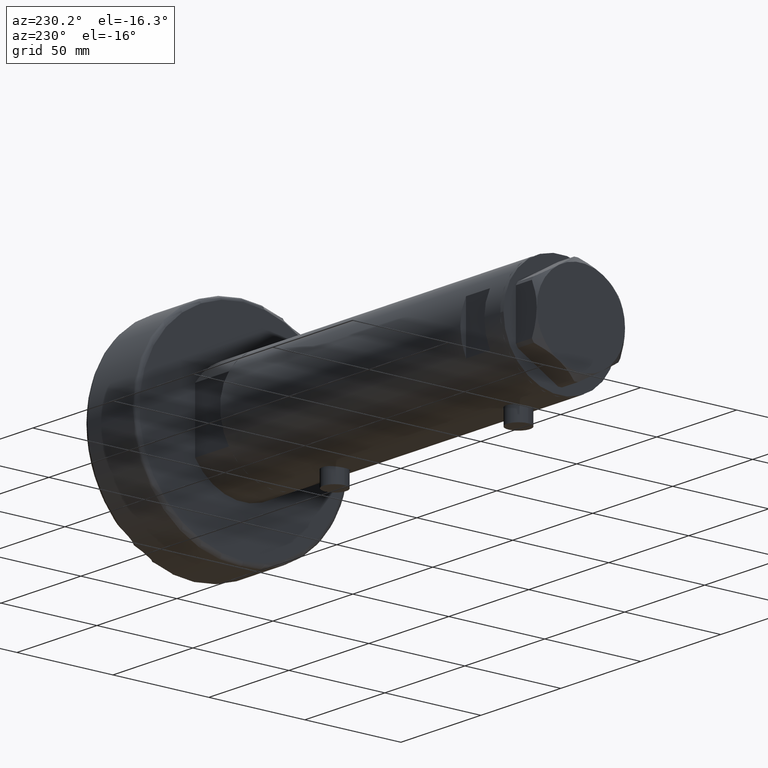
[diagram: clean part render]
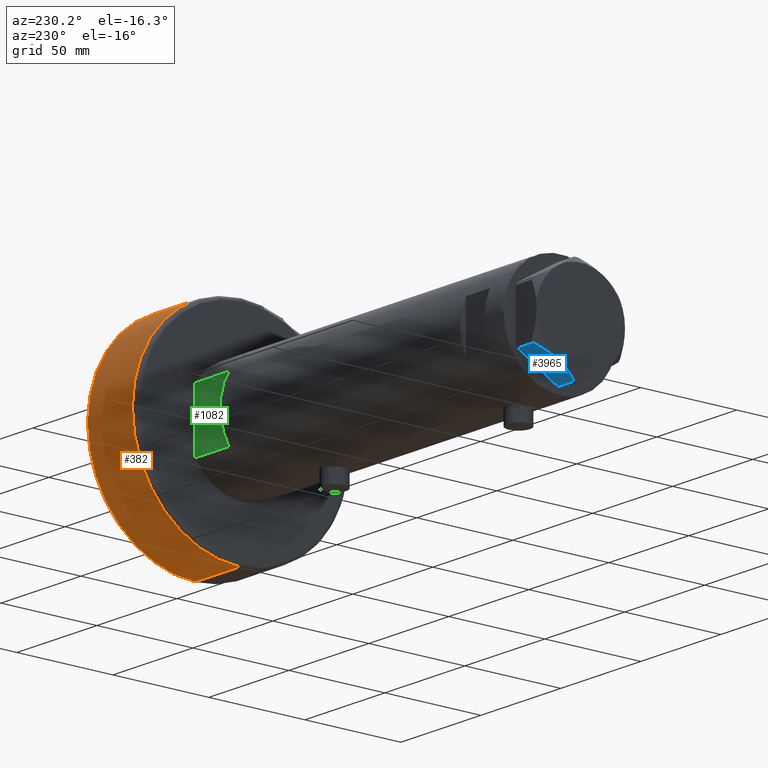
[diagram: same view with three faces highlighted in distinct colors, each labeled with its STEP entity id]
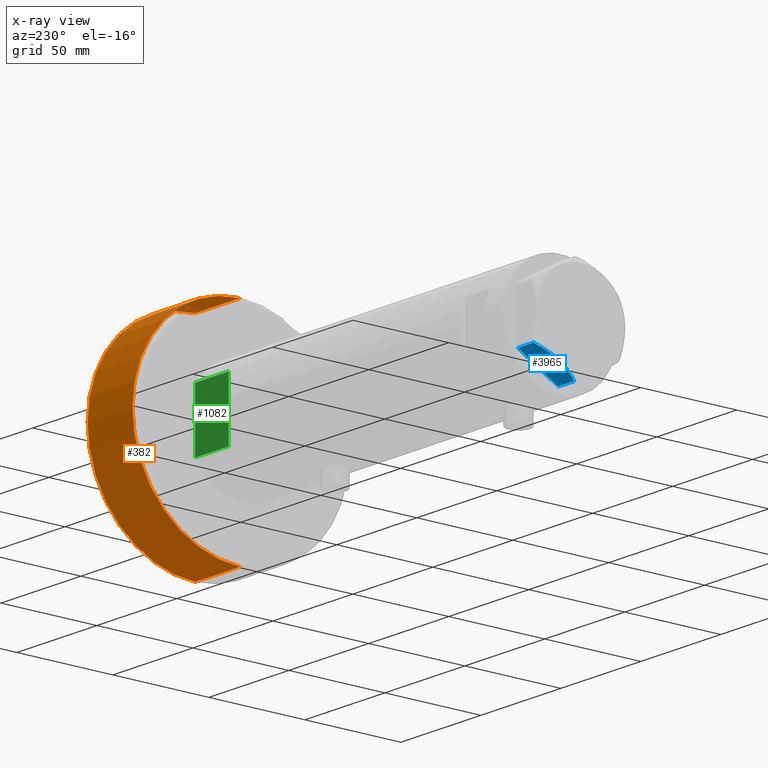
[diagram: x-ray of the same camera — body ghosted, the three highlighted faces saturated]
A machine part, auxiliary view with three faces highlighted in distinct colors.
The next image is the same camera in x-ray (body ghosted, the three faces saturated) — at least one of them is partly hidden behind the body in this view.
Their STEP definitions:

[orange] entity #382 — the highlighted cylindrical surface (partial cylindrical patch) has radius 56 mm, axis along (-1, -0, 0).
#72 = ORIENTED_EDGE ( 'NONE', *, *, #1482, .T. ) ;
#101 = DIRECTION ( 'NONE',  ( 0.000000000000000000, 0.000000000000000000, 1.000000000000000000 ) ) ;
#310 = CARTESIAN_POINT ( 'NONE',  ( -56.00000000000000000, 0.000000000000000000, 2.000000000000001776 ) ) ;
#382 = ADVANCED_FACE ( 'NONE', ( #2652 ), #1179, .T. ) ;
#499 = DIRECTION ( 'NONE',  ( -0.000000000000000000, -0.000000000000000000, -1.000000000000000000 ) ) ;
#584 = CARTESIAN_POINT ( 'NONE',  ( 56.00000000000000000, 6.858022075225178552E-15, 2.000000000000001776 ) ) ;
#783 = DIRECTION ( 'NONE',  ( -0.000000000000000000, -0.000000000000000000, -1.000000000000000000 ) ) ;
#821 = CARTESIAN_POINT ( 'NONE',  ( -56.00000000000000000, 0.000000000000000000, 32.00000000000000000 ) ) ;
#835 = CARTESIAN_POINT ( 'NONE',  ( 0.000000000000000000, 0.000000000000000000, 32.00000000000000000 ) ) ;
#1044 = EDGE_CURVE ( 'NONE', #4204, #4089, #4355, .T. ) ;
#1132 = EDGE_LOOP ( 'NONE', ( #72, #1228, #3410, #4830 ) ) ;
#1137 = CARTESIAN_POINT ( 'NONE',  ( 56.00000000000000000, 6.858022075225178552E-15, 32.00000000000000000 ) ) ;
#1179 = CYLINDRICAL_SURFACE ( 'NONE', #3230, 56.00000000000000000 ) ;
#1193 = LINE ( 'NONE', #821, #1849 ) ;
#1222 = CIRCLE ( 'NONE', #2865, 56.00000000000000000 ) ;
#1228 = ORIENTED_EDGE ( 'NONE', *, *, #2717, .T. ) ;
#1453 = VERTEX_POINT ( 'NONE', #3052 ) ;
#1482 = EDGE_CURVE ( 'NONE', #2770, #1453, #1222, .T. ) ;
#1561 = DIRECTION ( 'NONE',  ( -1.000000000000000000, 0.000000000000000000, 0.000000000000000000 ) ) ;
#1576 = DIRECTION ( 'NONE',  ( 1.000000000000000000, 0.000000000000000000, 0.000000000000000000 ) ) ;
#1607 = CARTESIAN_POINT ( 'NONE',  ( 0.000000000000000000, 0.000000000000000000, 2.000000000000001776 ) ) ;
#1849 = VECTOR ( 'NONE', #499, 1000.000000000000000 ) ;
#1865 = DIRECTION ( 'NONE',  ( -0.000000000000000000, -0.000000000000000000, -1.000000000000000000 ) ) ;
#2167 = AXIS2_PLACEMENT_3D ( 'NONE', #1607, #101, #2439 ) ;
#2439 = DIRECTION ( 'NONE',  ( 1.000000000000000000, 0.000000000000000000, 0.000000000000000000 ) ) ;
#2652 = FACE_OUTER_BOUND ( 'NONE', #1132, .T. ) ;
#2717 = EDGE_CURVE ( 'NONE', #1453, #4204, #3718, .T. ) ;
#2770 = VERTEX_POINT ( 'NONE', #3090 ) ;
#2805 = EDGE_CURVE ( 'NONE', #2770, #4089, #1193, .T. ) ;
#2865 = AXIS2_PLACEMENT_3D ( 'NONE', #3806, #4605, #1576 ) ;
#3052 = CARTESIAN_POINT ( 'NONE',  ( 56.00000000000000000, 6.858022075225178552E-15, 30.00000000000000000 ) ) ;
#3090 = CARTESIAN_POINT ( 'NONE',  ( -56.00000000000000000, 0.000000000000000000, 30.00000000000000000 ) ) ;
#3230 = AXIS2_PLACEMENT_3D ( 'NONE', #835, #783, #1561 ) ;
#3410 = ORIENTED_EDGE ( 'NONE', *, *, #1044, .T. ) ;
#3718 = LINE ( 'NONE', #1137, #4498 ) ;
#3806 = CARTESIAN_POINT ( 'NONE',  ( 0.000000000000000000, 0.000000000000000000, 30.00000000000000000 ) ) ;
#4089 = VERTEX_POINT ( 'NONE', #310 ) ;
#4204 = VERTEX_POINT ( 'NONE', #584 ) ;
#4355 = CIRCLE ( 'NONE', #2167, 56.00000000000000000 ) ;
#4498 = VECTOR ( 'NONE', #1865, 1000.000000000000000 ) ;
#4605 = DIRECTION ( 'NONE',  ( -0.000000000000000000, -0.000000000000000000, -1.000000000000000000 ) ) ;
#4830 = ORIENTED_EDGE ( 'NONE', *, *, #2805, .F. ) ;

[blue] entity #3965 — the highlighted planar face has unit normal (0, -0.5, 0.866).
#149 = PLANE ( 'NONE',  #4369 ) ;
#159 = EDGE_LOOP ( 'NONE', ( #3680, #796, #1557, #3792, #2582 ) ) ;
#230 = FACE_OUTER_BOUND ( 'NONE', #159, .T. ) ;
#534 = CARTESIAN_POINT ( 'NONE',  ( 18.67981377008996802, 15.77331687414936567, 11.62937486882604965 ) ) ;
#594 = CARTESIAN_POINT ( 'NONE',  ( 22.03005154776124996, 13.83905619136162635, 13.00000000000000000 ) ) ;
#764 = CARTESIAN_POINT ( 'NONE',  ( 3.925137811030053214, 24.29193301091819279, 11.39727285399137813 ) ) ;
#792 = B_SPLINE_CURVE_WITH_KNOTS ( 'NONE', 3,
 ( #3121, #3889, #534, #4183, #871, #4205, #1662, #2351, #826, #2370 ),
 .UNSPECIFIED., .F., .F.,
 ( 4, 2, 2, 2, 4 ),
 ( 0.001228959670438484414, 0.007497079744270713011, 0.01063113978118682308, 0.01219816979964488159, 0.01376519981810293836 ),
 .UNSPECIFIED. ) ;
#796 = ORIENTED_EDGE ( 'NONE', *, *, #1352, .T. ) ;
#826 = CARTESIAN_POINT ( 'NONE',  ( 11.95865151389051384, 19.65378171203322921, 13.00000000000000355 ) ) ;
#841 = CARTESIAN_POINT ( 'NONE',  ( 1.799196345396830266, 25.51934588838290452, 10.43131750950938930 ) ) ;
#871 = CARTESIAN_POINT ( 'NONE',  ( 15.16323225988329604, 17.80361615569442790, 12.63731396715686728 ) ) ;
#1267 = LINE ( 'NONE', #2030, #4048 ) ;
#1352 = EDGE_CURVE ( 'NONE', #3556, #3030, #1979, .T. ) ;
#1489 = CARTESIAN_POINT ( 'NONE',  ( 0.9699484522385838359, 25.99811238272274139, 9.983800287807635954 ) ) ;
#1520 = CARTESIAN_POINT ( 'NONE',  ( 11.49999999999990408, 19.91858428704219364, 13.00000000000000000 ) ) ;
#1557 = ORIENTED_EDGE ( 'NONE', *, *, #2919, .T. ) ;
#1577 = EDGE_CURVE ( 'NONE', #3748, #2677, #1754, .T. ) ;
#1580 = CARTESIAN_POINT ( 'NONE',  ( 7.884645426989624895, 22.00591022298558741, 12.70765172847692526 ) ) ;
#1649 = CARTESIAN_POINT ( 'NONE',  ( 22.99999999999981171, 13.27905619136164184, 13.00000000000000000 ) ) ;
#1662 = CARTESIAN_POINT ( 'NONE',  ( 13.34348161667004362, 18.85424967941157703, 12.90784227772834392 ) ) ;
#1754 = LINE ( 'NONE', #4260, #2095 ) ;
#1773 = CARTESIAN_POINT ( 'NONE',  ( 22.03005154776124996, 13.83905619136162635, 0.000000000000000000 ) ) ;
#1951 = CARTESIAN_POINT ( 'NONE',  ( 9.678244919010090541, 20.97037507344921892, 13.00000000000000888 ) ) ;
#1979 = LINE ( 'NONE', #594, #2856 ) ;
#2030 = CARTESIAN_POINT ( 'NONE',  ( 22.99999999999981171, 13.27905619136164184, 0.000000000000000000 ) ) ;
#2095 = VECTOR ( 'NONE', #2771, 1000.000000000000000 ) ;
#2351 = CARTESIAN_POINT ( 'NONE',  ( 12.41906678023027055, 19.38796083407295612, 12.98168640760940562 ) ) ;
#2370 = CARTESIAN_POINT ( 'NONE',  ( 11.49999999999990408, 19.91858428704219364, 13.00000000000000000 ) ) ;
#2444 = EDGE_CURVE ( 'NONE', #2703, #2677, #4430, .T. ) ;
#2524 = EDGE_CURVE ( 'NONE', #3556, #2703, #792, .T. ) ;
#2582 = ORIENTED_EDGE ( 'NONE', *, *, #2444, .F. ) ;
#2633 = CARTESIAN_POINT ( 'NONE',  ( 5.229981517798068857, 23.53858114556529912, 11.89212886775839451 ) ) ;
#2677 = VERTEX_POINT ( 'NONE', #2864 ) ;
#2703 = VERTEX_POINT ( 'NONE', #1520 ) ;
#2704 = CARTESIAN_POINT ( 'NONE',  ( 4.357207709416042185, 24.04247733877631887, 11.57055225522968378 ) ) ;
#2771 = DIRECTION ( 'NONE',  ( 0.000000000000000000, 0.000000000000000000, 1.000000000000000000 ) ) ;
#2856 = VECTOR ( 'NONE', #4762, 1000.000000000000000 ) ;
#2864 = CARTESIAN_POINT ( 'NONE',  ( 0.9699484522385838359, 25.99811238272274139, 9.983800287807635954 ) ) ;
#2919 = EDGE_CURVE ( 'NONE', #3030, #3748, #1267, .T. ) ;
#3030 = VERTEX_POINT ( 'NONE', #1773 ) ;
#3121 = CARTESIAN_POINT ( 'NONE',  ( 22.03005154776139207, 13.83905619136154463, 9.983800287807527596 ) ) ;
#3479 = CARTESIAN_POINT ( 'NONE',  ( 11.49999999999990408, 19.91858428704219364, 13.00000000000000000 ) ) ;
#3517 = DIRECTION ( 'NONE',  ( -0.8660254037844415942, 0.4999999999999949485, 0.000000000000000000 ) ) ;
#3556 = VERTEX_POINT ( 'NONE', #4380 ) ;
#3680 = ORIENTED_EDGE ( 'NONE', *, *, #2524, .F. ) ;
#3748 = VERTEX_POINT ( 'NONE', #4752 ) ;
#3792 = ORIENTED_EDGE ( 'NONE', *, *, #1577, .T. ) ;
#3889 = CARTESIAN_POINT ( 'NONE',  ( 20.37350567916420374, 14.79546339452108228, 10.87778242614341728 ) ) ;
#3965 = ADVANCED_FACE ( 'NONE', ( #230 ), #149, .F. ) ;
#4048 = VECTOR ( 'NONE', #3517, 999.9999999999998863 ) ;
#4183 = CARTESIAN_POINT ( 'NONE',  ( 16.05322244309624224, 17.28978008384030929, 12.42689993760370015 ) ) ;
#4196 = CARTESIAN_POINT ( 'NONE',  ( 2.640413878806743053, 25.03366871902166935, 10.84420102443836598 ) ) ;
#4205 = CARTESIAN_POINT ( 'NONE',  ( 13.80210138309696788, 18.58946543380931260, 12.85271263895571181 ) ) ;
#4260 = CARTESIAN_POINT ( 'NONE',  ( 0.9699484522385886098, 25.99811238272273783, 13.00000000000000000 ) ) ;
#4266 = DIRECTION ( 'NONE',  ( 0.8660254037844415942, -0.4999999999999948930, 0.000000000000000000 ) ) ;
#4369 = AXIS2_PLACEMENT_3D ( 'NONE', #1649, #4625, #4266 ) ;
#4380 = CARTESIAN_POINT ( 'NONE',  ( 22.03005154776139207, 13.83905619136154463, 9.983800287807527596 ) ) ;
#4430 = B_SPLINE_CURVE_WITH_KNOTS ( 'NONE', 3,
 ( #3479, #1951, #1580, #4826, #2633, #2704, #764, #4196, #841, #1489 ),
 .UNSPECIFIED., .F., .F.,
 ( 4, 2, 2, 2, 4 ),
 ( 0.01376519981810293836, 0.01998941321701560442, 0.02154546656674377267, 0.02310151991647194092, 0.02621362661592828089 ),
 .UNSPECIFIED. ) ;
#4625 = DIRECTION ( 'NONE',  ( -0.4999999999999948930, -0.8660254037844415942, 0.000000000000000000 ) ) ;
#4752 = CARTESIAN_POINT ( 'NONE',  ( 0.9699484522385886098, 25.99811238272273783, 0.000000000000000000 ) ) ;
#4762 = DIRECTION ( 'NONE',  ( 0.000000000000000000, 0.000000000000000000, -1.000000000000000000 ) ) ;
#4826 = CARTESIAN_POINT ( 'NONE',  ( 5.671686373602804920, 23.28356272816407113, 12.04068176582928018 ) ) ;

[green] entity #1082 — the highlighted planar face has unit normal (0, -1, -0).
#364 = VERTEX_POINT ( 'NONE', #1921 ) ;
#414 = VERTEX_POINT ( 'NONE', #2308 ) ;
#645 = CARTESIAN_POINT ( 'NONE',  ( 7.141428428542853091, 25.00000000000000000, 0.000000000000000000 ) ) ;
#754 = VECTOR ( 'NONE', #3525, 1000.000000000000000 ) ;
#880 = DIRECTION ( 'NONE',  ( 0.000000000000000000, -1.000000000000000000, 0.000000000000000000 ) ) ;
#898 = VECTOR ( 'NONE', #2416, 1000.000000000000000 ) ;
#913 = CARTESIAN_POINT ( 'NONE',  ( 15.66045976336583401, 25.00000000000000000, 0.000000000000000000 ) ) ;
#956 = ORIENTED_EDGE ( 'NONE', *, *, #958, .F. ) ;
#958 = EDGE_CURVE ( 'NONE', #3393, #4389, #1541, .T. ) ;
#1082 = ADVANCED_FACE ( 'NONE', ( #1653 ), #3080, .F. ) ;
#1162 = EDGE_CURVE ( 'NONE', #414, #3896, #2777, .T. ) ;
#1264 = DIRECTION ( 'NONE',  ( 0.000000000000000000, -0.000000000000000000, -1.000000000000000000 ) ) ;
#1532 = ORIENTED_EDGE ( 'NONE', *, *, #2392, .F. ) ;
#1541 = LINE ( 'NONE', #2983, #1542 ) ;
#1542 = VECTOR ( 'NONE', #3016, 1000.000000000000000 ) ;
#1653 = FACE_OUTER_BOUND ( 'NONE', #3871, .T. ) ;
#1811 = LINE ( 'NONE', #2338, #3081 ) ;
#1876 = DIRECTION ( 'NONE',  ( 1.000000000000000000, 0.000000000000000000, 0.000000000000000000 ) ) ;
#1921 = CARTESIAN_POINT ( 'NONE',  ( -15.66045976336583045, 24.99999999999999645, 21.00000000000000355 ) ) ;
#1936 = CARTESIAN_POINT ( 'NONE',  ( -15.66045976336583401, 25.00000000000000000, 21.00000000000000000 ) ) ;
#2023 = VECTOR ( 'NONE', #4784, 1000.000000000000000 ) ;
#2088 = AXIS2_PLACEMENT_3D ( 'NONE', #2752, #880, #1264 ) ;
#2263 = DIRECTION ( 'NONE',  ( -0.000000000000000000, -0.000000000000000000, 1.000000000000000000 ) ) ;
#2308 = CARTESIAN_POINT ( 'NONE',  ( 15.66045976336582690, 25.00000000000000000, 0.000000000000000000 ) ) ;
#2338 = CARTESIAN_POINT ( 'NONE',  ( -15.66045976336583401, 25.00000000000000000, 0.000000000000000000 ) ) ;
#2392 = EDGE_CURVE ( 'NONE', #4389, #414, #4103, .T. ) ;
#2416 = DIRECTION ( 'NONE',  ( -0.000000000000000000, -0.000000000000000000, 1.000000000000000000 ) ) ;
#2423 = ORIENTED_EDGE ( 'NONE', *, *, #4521, .F. ) ;
#2604 = CARTESIAN_POINT ( 'NONE',  ( -15.66045976336583401, 25.00000000000000000, 0.000000000000000000 ) ) ;
#2663 = LINE ( 'NONE', #1936, #754 ) ;
#2752 = CARTESIAN_POINT ( 'NONE',  ( -15.66045976336583401, 25.00000000000000000, 0.000000000000000000 ) ) ;
#2777 = LINE ( 'NONE', #913, #898 ) ;
#2957 = ORIENTED_EDGE ( 'NONE', *, *, #1162, .F. ) ;
#2983 = CARTESIAN_POINT ( 'NONE',  ( -15.66045976336583401, 25.00000000000000000, 0.000000000000000000 ) ) ;
#3016 = DIRECTION ( 'NONE',  ( 1.000000000000000000, 0.000000000000000000, 0.000000000000000000 ) ) ;
#3080 = PLANE ( 'NONE',  #2088 ) ;
#3081 = VECTOR ( 'NONE', #2263, 1000.000000000000000 ) ;
#3125 = EDGE_CURVE ( 'NONE', #4849, #364, #1811, .T. ) ;
#3141 = ORIENTED_EDGE ( 'NONE', *, *, #3125, .T. ) ;
#3176 = ORIENTED_EDGE ( 'NONE', *, *, #4310, .T. ) ;
#3295 = LINE ( 'NONE', #4108, #2023 ) ;
#3393 = VERTEX_POINT ( 'NONE', #4362 ) ;
#3525 = DIRECTION ( 'NONE',  ( 1.000000000000000000, 0.000000000000000000, 0.000000000000000000 ) ) ;
#3871 = EDGE_LOOP ( 'NONE', ( #3176, #2957, #1532, #956, #2423, #3141 ) ) ;
#3896 = VERTEX_POINT ( 'NONE', #4519 ) ;
#4103 = LINE ( 'NONE', #4844, #4110 ) ;
#4108 = CARTESIAN_POINT ( 'NONE',  ( -15.66045976336583401, 25.00000000000000000, 0.000000000000000000 ) ) ;
#4110 = VECTOR ( 'NONE', #1876, 1000.000000000000000 ) ;
#4310 = EDGE_CURVE ( 'NONE', #364, #3896, #2663, .T. ) ;
#4362 = CARTESIAN_POINT ( 'NONE',  ( -7.141428428542853091, 25.00000000000000000, 0.000000000000000000 ) ) ;
#4389 = VERTEX_POINT ( 'NONE', #645 ) ;
#4519 = CARTESIAN_POINT ( 'NONE',  ( 15.66045976336583045, 24.99999999999999645, 20.99999999999999645 ) ) ;
#4521 = EDGE_CURVE ( 'NONE', #4849, #3393, #3295, .T. ) ;
#4784 = DIRECTION ( 'NONE',  ( 1.000000000000000000, 0.000000000000000000, 0.000000000000000000 ) ) ;
#4844 = CARTESIAN_POINT ( 'NONE',  ( -15.66045976336583401, 25.00000000000000000, 0.000000000000000000 ) ) ;
#4849 = VERTEX_POINT ( 'NONE', #2604 ) ;